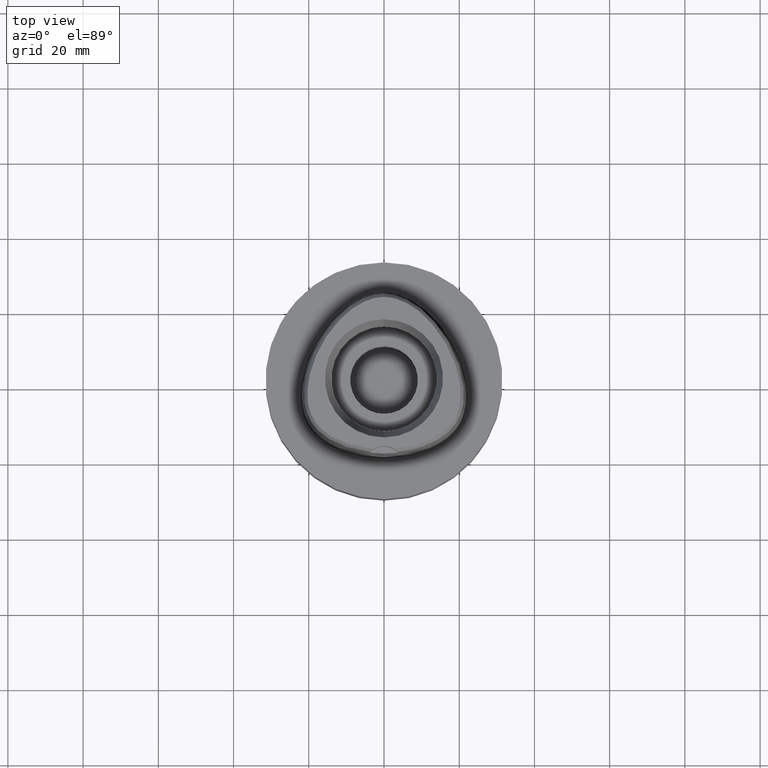
[diagram: clean part render]
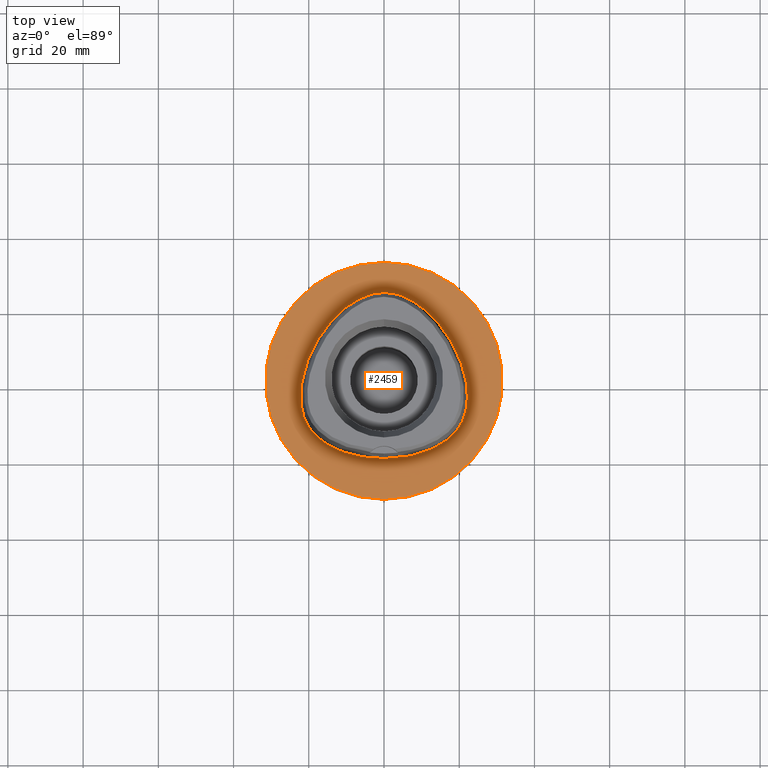
[diagram: same view with one face highlighted and labeled with its STEP entity id]
A machine part, top view. The second image highlights one B-rep face of the part: STEP entity #2459.
In plain terms, the highlighted planar face has unit normal (0, 0, -1).
Its self-contained STEP definition (entity closure, byte-faithful):
#280=CARTESIAN_POINT('',(0.E0,1.307310458090E-14,0.E0));
#281=DIRECTION('',(0.E0,0.E0,-1.E0));
#282=DIRECTION('',(0.E0,-1.E0,0.E0));
#283=AXIS2_PLACEMENT_3D('',#280,#281,#282);
#288=CARTESIAN_POINT('',(0.E0,1.307310458090E-14,0.E0));
#289=DIRECTION('',(0.E0,0.E0,-1.E0));
#290=DIRECTION('',(0.E0,1.E0,0.E0));
#291=AXIS2_PLACEMENT_3D('',#288,#289,#290);
#296=CARTESIAN_POINT('',(-7.025226202276E-12,-2.0675E1,7.423691291327E-14));
#297=CARTESIAN_POINT('',(9.696449193971E-1,-2.0675E1,7.423691291327E-14));
#298=CARTESIAN_POINT('',(2.869359218279E0,-2.059664892280E1,
-3.445347118589E-14));
#299=CARTESIAN_POINT('',(5.628890464365E0,-2.025948190435E1,0.E0));
#300=CARTESIAN_POINT('',(8.212389498786E0,-1.972495271961E1,0.E0));
#301=CARTESIAN_POINT('',(1.055590877096E1,-1.902992880187E1,0.E0));
#302=CARTESIAN_POINT('',(1.262648749775E1,-1.821494749687E1,0.E0));
#303=CARTESIAN_POINT('',(1.442632796445E1,-1.731409880463E1,0.E0));
#304=CARTESIAN_POINT('',(1.597826980356E1,-1.634849947215E1,0.E0));
#305=CARTESIAN_POINT('',(1.729272679183E1,-1.534476430662E1,0.E0));
#306=CARTESIAN_POINT('',(1.840631071867E1,-1.430636057348E1,0.E0));
#307=CARTESIAN_POINT('',(1.934064837732E1,-1.323816028795E1,0.E0));
#308=CARTESIAN_POINT('',(2.012478674005E1,-1.212673791652E1,0.E0));
#309=CARTESIAN_POINT('',(2.077619553208E1,-1.094577442846E1,0.E0));
#310=CARTESIAN_POINT('',(2.130480808583E1,-9.682349975254E0,0.E0));
#311=CARTESIAN_POINT('',(2.172374489730E1,-8.295275100954E0,0.E0));
#312=CARTESIAN_POINT('',(2.202311183728E1,-6.764072560865E0,0.E0));
#313=CARTESIAN_POINT('',(2.218684134189E1,-5.054739177557E0,0.E0));
#314=CARTESIAN_POINT('',(2.218812470964E1,-3.165687813018E0,0.E0));
#315=CARTESIAN_POINT('',(2.199906235253E1,-1.084924122012E0,0.E0));
#316=CARTESIAN_POINT('',(2.158831508849E1,1.183691833102E0,0.E0));
#317=CARTESIAN_POINT('',(2.092945109464E1,3.612485699932E0,0.E0));
#318=CARTESIAN_POINT('',(2.000600956625E1,6.153725564804E0,0.E0));
#319=CARTESIAN_POINT('',(1.882402336048E1,8.726443176908E0,0.E0));
#320=CARTESIAN_POINT('',(1.741188696276E1,1.123977895859E1,0.E0));
#321=CARTESIAN_POINT('',(1.581553544803E1,1.360753654784E1,0.E0));
#322=CARTESIAN_POINT('',(1.410265394990E1,1.574816738736E1,0.E0));
#323=CARTESIAN_POINT('',(1.233221734629E1,1.761876537074E1,0.E0));
#324=CARTESIAN_POINT('',(1.056748029132E1,1.919100964483E1,0.E0));
#325=CARTESIAN_POINT('',(8.844920598074E0,2.047448750360E1,0.E0));
#326=CARTESIAN_POINT('',(7.188482811189E0,2.148988621512E1,0.E0));
#327=CARTESIAN_POINT('',(5.609331832987E0,2.226541949591E1,0.E0));
#328=CARTESIAN_POINT('',(4.104370529806E0,2.283161244340E1,0.E0));
#329=CARTESIAN_POINT('',(2.671679869061E0,2.321244146092E1,0.E0));
#330=CARTESIAN_POINT('',(1.305808838521E0,2.342910934149E1,
-3.313098001873E-14));
#331=CARTESIAN_POINT('',(4.290405100522E-1,2.347499999999E1,
7.138734048340E-14));
#332=CARTESIAN_POINT('',(4.298359254040E-11,2.347499999999E1,
7.138734048340E-14));
#337=CARTESIAN_POINT('',(4.298359254040E-11,2.347499999999E1,
7.138734048340E-14));
#338=CARTESIAN_POINT('',(-4.268332580714E-1,2.347499999999E1,
7.138734048340E-14));
#339=CARTESIAN_POINT('',(-1.299550983799E0,2.342958000419E1,
-3.313098001873E-14));
#340=CARTESIAN_POINT('',(-2.660478858783E0,2.321466632163E1,0.E0));
#341=CARTESIAN_POINT('',(-4.089240634220E0,2.283634299526E1,0.E0));
#342=CARTESIAN_POINT('',(-5.592418770295E0,2.227279656542E1,0.E0));
#343=CARTESIAN_POINT('',(-7.175574198206E0,2.149722227668E1,0.E0));
#344=CARTESIAN_POINT('',(-8.837611929185E0,2.047971493502E1,0.E0));
#345=CARTESIAN_POINT('',(-1.056786585900E1,1.919116123678E1,0.E0));
#346=CARTESIAN_POINT('',(-1.234219302994E1,1.760948445940E1,0.E0));
#347=CARTESIAN_POINT('',(-1.411901290635E1,1.572995325403E1,0.E0));
#348=CARTESIAN_POINT('',(-1.584174923175E1,1.357254527184E1,0.E0));
#349=CARTESIAN_POINT('',(-1.744116944045E1,1.119268064035E1,0.E0));
#350=CARTESIAN_POINT('',(-1.885427967607E1,8.667675945893E0,0.E0));
#351=CARTESIAN_POINT('',(-2.003529684193E1,6.082960195108E0,0.E0));
#352=CARTESIAN_POINT('',(-2.095427004042E1,3.534660354390E0,0.E0));
#353=CARTESIAN_POINT('',(-2.160723705242E1,1.100357934774E0,0.E0));
#354=CARTESIAN_POINT('',(-2.201040572828E1,-1.168414488992E0,0.E0));
#355=CARTESIAN_POINT('',(-2.219182814603E1,-3.247787391941E0,0.E0));
#356=CARTESIAN_POINT('',(-2.218291259201E1,-5.132622102925E0,0.E0));
#357=CARTESIAN_POINT('',(-2.201302643648E1,-6.832471356129E0,0.E0));
#358=CARTESIAN_POINT('',(-2.170740821215E1,-8.361254503903E0,0.E0));
#359=CARTESIAN_POINT('',(-2.128258912953E1,-9.743117348932E0,0.E0));
#360=CARTESIAN_POINT('',(-2.075691640932E1,-1.098227289377E1,0.E0));
#361=CARTESIAN_POINT('',(-2.012892376226E1,-1.211660759177E1,0.E0));
#362=CARTESIAN_POINT('',(-1.936974185024E1,-1.320008699214E1,0.E0));
#363=CARTESIAN_POINT('',(-1.844470428820E1,-1.426652447521E1,0.E0));
#364=CARTESIAN_POINT('',(-1.733947090931E1,-1.530526732132E1,0.E0));
#365=CARTESIAN_POINT('',(-1.602767507685E1,-1.631437872707E1,0.E0));
#366=CARTESIAN_POINT('',(-1.448334578714E1,-1.728222013217E1,0.E0));
#367=CARTESIAN_POINT('',(-1.268212092670E1,-1.819045140536E1,0.E0));
#368=CARTESIAN_POINT('',(-1.060795451498E1,-1.901226654552E1,0.E0));
#369=CARTESIAN_POINT('',(-8.259924124456E0,-1.971322463623E1,0.E0));
#370=CARTESIAN_POINT('',(-5.666310456502E0,-2.025404326246E1,0.E0));
#371=CARTESIAN_POINT('',(-2.876005111887E0,-2.059675256111E1,
-3.445347118589E-14));
#372=CARTESIAN_POINT('',(-9.709395432949E-1,-2.0675E1,7.423691291327E-14));
#373=CARTESIAN_POINT('',(-7.025226202276E-12,-2.0675E1,7.423691291327E-14));
#1600=VERTEX_POINT('',#337);
#1601=VERTEX_POINT('',#373);
#1606=CARTESIAN_POINT('',(0.E0,-3.15E1,0.E0));
#1607=CARTESIAN_POINT('',(0.E0,3.15E1,0.E0));
#1608=VERTEX_POINT('',#1606);
#1609=VERTEX_POINT('',#1607);
#2443=CARTESIAN_POINT('',(0.E0,1.224646799147E-14,0.E0));
#2444=DIRECTION('',(0.E0,0.E0,-1.E0));
#2445=DIRECTION('',(0.E0,-1.E0,0.E0));
#2446=AXIS2_PLACEMENT_3D('',#2443,#2444,#2445);
#2447=PLANE('',#2446);
#2449=ORIENTED_EDGE('',*,*,#2448,.T.);
#2451=ORIENTED_EDGE('',*,*,#2450,.T.);
#2452=EDGE_LOOP('',(#2449,#2451));
#2453=FACE_OUTER_BOUND('',#2452,.F.);
#2455=ORIENTED_EDGE('',*,*,#2454,.T.);
#2456=ORIENTED_EDGE('',*,*,#2426,.T.);
#2457=EDGE_LOOP('',(#2455,#2456));
#2458=FACE_BOUND('',#2457,.F.);
#284=CIRCLE('',#283,3.15E1);
#292=CIRCLE('',#291,3.15E1);
#333=B_SPLINE_CURVE_WITH_KNOTS('',3,(#296,#297,#298,#299,#300,#301,#302,#303,
#304,#305,#306,#307,#308,#309,#310,#311,#312,#313,#314,#315,#316,#317,#318,#319,
#320,#321,#322,#323,#324,#325,#326,#327,#328,#329,#330,#331,#332),.UNSPECIFIED.,
.F.,.F.,(4,1,1,1,1,1,1,1,1,1,1,1,1,1,1,1,1,1,1,1,1,1,1,1,1,1,1,1,1,1,1,1,1,1,4),
(0.E0,2.941176470588E-2,5.882352941176E-2,8.823529411765E-2,1.176470588235E-1,
1.470588235294E-1,1.764705882353E-1,2.058823529412E-1,2.352941176471E-1,
2.647058823529E-1,2.941176470588E-1,3.235294117647E-1,3.529411764706E-1,
3.823529411765E-1,4.117647058824E-1,4.411764705882E-1,4.705882352941E-1,5.E-1,
5.294117647059E-1,5.588235294118E-1,5.882352941176E-1,6.176470588235E-1,
6.470588235294E-1,6.764705882353E-1,7.058823529412E-1,7.352941176471E-1,
7.647058823529E-1,7.941176470588E-1,8.235294117647E-1,8.529411764706E-1,
8.823529411765E-1,9.117647058824E-1,9.411764705882E-1,9.705882352941E-1,1.E0),
.UNSPECIFIED.);
#374=B_SPLINE_CURVE_WITH_KNOTS('',3,(#337,#338,#339,#340,#341,#342,#343,#344,
#345,#346,#347,#348,#349,#350,#351,#352,#353,#354,#355,#356,#357,#358,#359,#360,
#361,#362,#363,#364,#365,#366,#367,#368,#369,#370,#371,#372,#373),.UNSPECIFIED.,
.F.,.F.,(4,1,1,1,1,1,1,1,1,1,1,1,1,1,1,1,1,1,1,1,1,1,1,1,1,1,1,1,1,1,1,1,1,1,4),
(0.E0,2.941176470588E-2,5.882352941176E-2,8.823529411765E-2,1.176470588235E-1,
1.470588235294E-1,1.764705882353E-1,2.058823529412E-1,2.352941176471E-1,
2.647058823529E-1,2.941176470588E-1,3.235294117647E-1,3.529411764706E-1,
3.823529411765E-1,4.117647058824E-1,4.411764705882E-1,4.705882352941E-1,5.E-1,
5.294117647059E-1,5.588235294118E-1,5.882352941176E-1,6.176470588235E-1,
6.470588235294E-1,6.764705882353E-1,7.058823529412E-1,7.352941176471E-1,
7.647058823529E-1,7.941176470588E-1,8.235294117647E-1,8.529411764706E-1,
8.823529411765E-1,9.117647058824E-1,9.411764705882E-1,9.705882352941E-1,1.E0),
.UNSPECIFIED.);
#2426=EDGE_CURVE('',#1600,#1601,#374,.T.);
#2448=EDGE_CURVE('',#1608,#1609,#284,.T.);
#2450=EDGE_CURVE('',#1609,#1608,#292,.T.);
#2454=EDGE_CURVE('',#1601,#1600,#333,.T.);
#2459=ADVANCED_FACE('',(#2453,#2458),#2447,.F.);